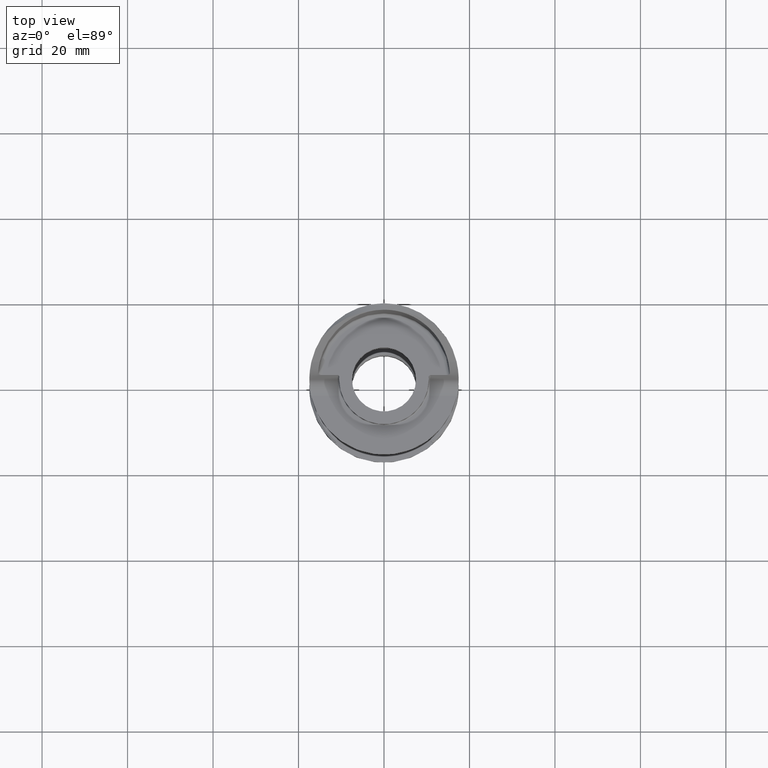
[diagram: clean part render]
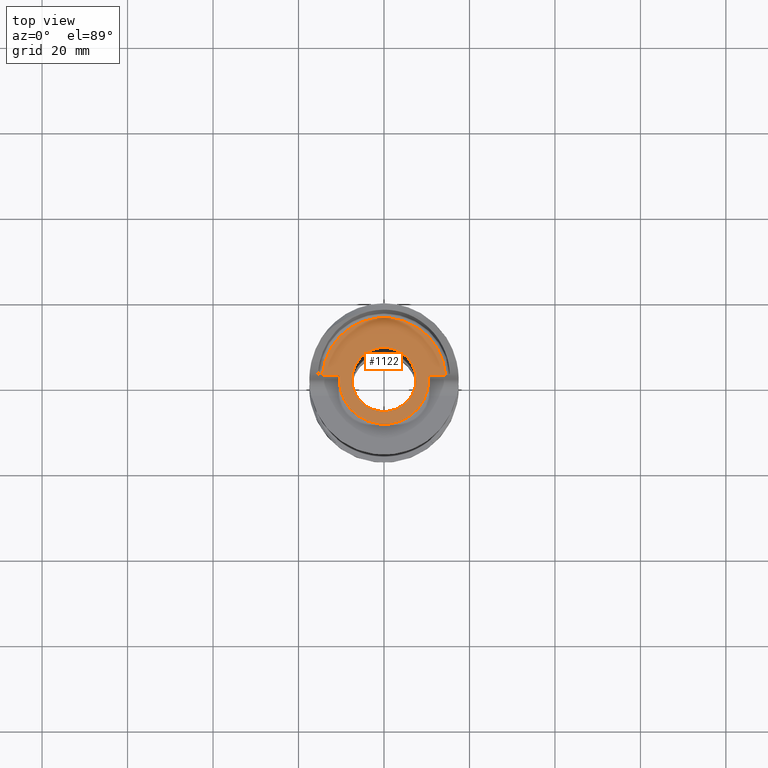
[diagram: same view with one face highlighted and labeled with its STEP entity id]
A machine part, top view. The second image highlights one B-rep face of the part: STEP entity #1122.
In plain terms, the highlighted planar face has unit normal (0, 0, 1).
Its self-contained STEP definition (entity closure, byte-faithful):
#24 = DIRECTION ( 'NONE',  ( 1.000000000000000000, -0.0000000000000000000, -0.0000000000000000000 ) ) ;
#36 = CIRCLE ( 'NONE', #2549, 0.4130000000000000300 ) ;
#57 = VERTEX_POINT ( 'NONE', #1494 ) ;
#131 = CARTESIAN_POINT ( 'NONE',  ( -0.4130000000000000300, 5.057791280478569300E-017, 0.5899999999999999700 ) ) ;
#155 = CARTESIAN_POINT ( 'NONE',  ( 0.4272119029961830000, 0.03997152839615136800, 0.5899999999999999700 ) ) ;
#176 = ORIENTED_EDGE ( 'NONE', *, *, #234, .F. ) ;
#212 = CARTESIAN_POINT ( 'NONE',  ( 0.0000000000000000000, 0.0000000000000000000, 0.5899999999999999700 ) ) ;
#219 = DIRECTION ( 'NONE',  ( 1.000000000000000000, 0.0000000000000000000, 0.0000000000000000000 ) ) ;
#234 = EDGE_CURVE ( 'NONE', #1791, #772, #1723, .T. ) ;
#243 = LINE ( 'NONE', #2629, #1846 ) ;
#256 = EDGE_LOOP ( 'NONE', ( #2511, #1966, #1314, #1048, #771, #1284, #1279, #1037 ) ) ;
#323 = AXIS2_PLACEMENT_3D ( 'NONE', #363, #1905, #593 ) ;
#346 = VERTEX_POINT ( 'NONE', #746 ) ;
#363 = CARTESIAN_POINT ( 'NONE',  ( 0.0000000000000000000, 0.0000000000000000000, 0.5899999999999999700 ) ) ;
#378 = CARTESIAN_POINT ( 'NONE',  ( 0.0000000000000000000, 0.0000000000000000000, 0.5899999999999999700 ) ) ;
#414 = AXIS2_PLACEMENT_3D ( 'NONE', #212, #875, #2397 ) ;
#432 = CARTESIAN_POINT ( 'NONE',  ( 0.0000000000000000000, 0.0000000000000000000, 0.5899999999999999700 ) ) ;
#504 = CARTESIAN_POINT ( 'NONE',  ( -0.4272119029961830600, 0.03997152839615136800, 0.5899999999999999700 ) ) ;
#518 = VERTEX_POINT ( 'NONE', #131 ) ;
#545 = DIRECTION ( 'NONE',  ( 1.000000000000000000, 0.0000000000000000000, 0.0000000000000000000 ) ) ;
#546 = EDGE_CURVE ( 'NONE', #2470, #1885, #1770, .T. ) ;
#582 = CARTESIAN_POINT ( 'NONE',  ( 0.4134759315422202300, 0.03156485039215653500, 0.5900000000000000800 ) ) ;
#593 = DIRECTION ( 'NONE',  ( 1.000000000000000000, 0.0000000000000000000, 0.0000000000000000000 ) ) ;
#605 = EDGE_CURVE ( 'NONE', #932, #2470, #2771, .T. ) ;
#606 = DIRECTION ( 'NONE',  ( 1.000000000000000000, 0.0000000000000000000, 0.0000000000000000000 ) ) ;
#746 = CARTESIAN_POINT ( 'NONE',  ( 0.5671268584413404800, 0.03997152839615136800, 0.5899999999999999700 ) ) ;
#771 = ORIENTED_EDGE ( 'NONE', *, *, #820, .T. ) ;
#772 = VERTEX_POINT ( 'NONE', #2402 ) ;
#780 = CARTESIAN_POINT ( 'NONE',  ( 0.0000000000000000000, 0.0000000000000000000, 0.5899999999999999700 ) ) ;
#820 = EDGE_CURVE ( 'NONE', #1885, #346, #243, .T. ) ;
#845 = DIRECTION ( 'NONE',  ( 0.0000000000000000000, 0.0000000000000000000, 1.000000000000000000 ) ) ;
#860 = B_SPLINE_CURVE_WITH_KNOTS ( 'NONE', 3,
 ( #1516, #2789, #2102, #2122, #1924, #1936 ),
 .UNSPECIFIED., .F., .F.,
 ( 4, 2, 4 ),
 ( 1.748223473168675600E-018, 0.0003180297372260358600, 0.0006360594744520699900 ),
 .UNSPECIFIED. ) ;
#875 = DIRECTION ( 'NONE',  ( 0.0000000000000000000, 0.0000000000000000000, 1.000000000000000000 ) ) ;
#932 = VERTEX_POINT ( 'NONE', #2766 ) ;
#979 = EDGE_CURVE ( 'NONE', #518, #932, #2149, .T. ) ;
#1037 = ORIENTED_EDGE ( 'NONE', *, *, #1915, .T. ) ;
#1048 = ORIENTED_EDGE ( 'NONE', *, *, #546, .T. ) ;
#1068 = DIRECTION ( 'NONE',  ( -0.0000000000000000000, -0.0000000000000000000, 1.000000000000000000 ) ) ;
#1074 = AXIS2_PLACEMENT_3D ( 'NONE', #432, #1755, #219 ) ;
#1081 = EDGE_CURVE ( 'NONE', #772, #1791, #2081, .T. ) ;
#1094 = LINE ( 'NONE', #1588, #2768 ) ;
#1122 = ADVANCED_FACE ( 'NONE', ( #1164, #2387 ), #1532, .T. ) ;
#1146 = EDGE_LOOP ( 'NONE', ( #1416, #176 ) ) ;
#1164 = FACE_BOUND ( 'NONE', #1146, .T. ) ;
#1212 = AXIS2_PLACEMENT_3D ( 'NONE', #2372, #1068, #2590 ) ;
#1237 = EDGE_CURVE ( 'NONE', #57, #2608, #1094, .T. ) ;
#1256 = CARTESIAN_POINT ( 'NONE',  ( 0.4123537041102831000, 0.02309594567297702100, 0.5899999999999999700 ) ) ;
#1279 = ORIENTED_EDGE ( 'NONE', *, *, #1237, .T. ) ;
#1284 = ORIENTED_EDGE ( 'NONE', *, *, #1708, .T. ) ;
#1314 = ORIENTED_EDGE ( 'NONE', *, *, #605, .T. ) ;
#1327 = AXIS2_PLACEMENT_3D ( 'NONE', #378, #1916, #606 ) ;
#1367 = DIRECTION ( 'NONE',  ( 0.0000000000000000000, 0.0000000000000000000, 1.000000000000000000 ) ) ;
#1416 = ORIENTED_EDGE ( 'NONE', *, *, #1081, .F. ) ;
#1465 = CARTESIAN_POINT ( 'NONE',  ( 0.4229728860554361500, 0.03997152839615143700, 0.5899999999999999700 ) ) ;
#1477 = DIRECTION ( 'NONE',  ( 1.000000000000000000, 0.0000000000000000000, 0.0000000000000000000 ) ) ;
#1494 = CARTESIAN_POINT ( 'NONE',  ( -0.5671268584413404800, 0.03997152839615136800, 0.5899999999999999700 ) ) ;
#1516 = CARTESIAN_POINT ( 'NONE',  ( -0.4272119029961830600, 0.03997152839615136800, 0.5899999999999999700 ) ) ;
#1532 = PLANE ( 'NONE',  #414 ) ;
#1588 = CARTESIAN_POINT ( 'NONE',  ( 0.6875000000000000000, 0.03997152839615136800, 0.5899999999999999700 ) ) ;
#1694 = CARTESIAN_POINT ( 'NONE',  ( -0.2952755905511810800, 3.616083068348483800E-017, 0.5899999999999999700 ) ) ;
#1705 = CARTESIAN_POINT ( 'NONE',  ( 0.4272119029961830000, 0.03997152839615136800, 0.5899999999999999700 ) ) ;
#1708 = EDGE_CURVE ( 'NONE', #346, #57, #2663, .T. ) ;
#1723 = CIRCLE ( 'NONE', #1074, 0.2952755905511810200 ) ;
#1755 = DIRECTION ( 'NONE',  ( -0.0000000000000000000, -0.0000000000000000000, 1.000000000000000000 ) ) ;
#1770 = B_SPLINE_CURVE_WITH_KNOTS ( 'NONE', 3,
 ( #1256, #2113, #582, #2777, #1465, #155 ),
 .UNSPECIFIED., .F., .F.,
 ( 4, 2, 4 ),
 ( 0.0000000000000000000, 0.0003178410015403890400, 0.0006356820030807780800 ),
 .UNSPECIFIED. ) ;
#1791 = VERTEX_POINT ( 'NONE', #1694 ) ;
#1846 = VECTOR ( 'NONE', #24, 39.37007874015748100 ) ;
#1885 = VERTEX_POINT ( 'NONE', #1705 ) ;
#1905 = DIRECTION ( 'NONE',  ( 0.0000000000000000000, 0.0000000000000000000, 1.000000000000000000 ) ) ;
#1914 = CARTESIAN_POINT ( 'NONE',  ( -0.4123537041102831000, 0.02309594567297702800, 0.5899999999999999700 ) ) ;
#1915 = EDGE_CURVE ( 'NONE', #2608, #1923, #860, .T. ) ;
#1916 = DIRECTION ( 'NONE',  ( 0.0000000000000000000, 0.0000000000000000000, 1.000000000000000000 ) ) ;
#1923 = VERTEX_POINT ( 'NONE', #1914 ) ;
#1924 = CARTESIAN_POINT ( 'NONE',  ( -0.4121172797892679300, 0.02731705209107853800, 0.5899999999999999700 ) ) ;
#1936 = CARTESIAN_POINT ( 'NONE',  ( -0.4123537041102831000, 0.02309594567297702800, 0.5899999999999999700 ) ) ;
#1957 = CARTESIAN_POINT ( 'NONE',  ( 0.4123537041102831000, 0.02309594567297702100, 0.5899999999999999700 ) ) ;
#1966 = ORIENTED_EDGE ( 'NONE', *, *, #979, .T. ) ;
#2037 = CARTESIAN_POINT ( 'NONE',  ( 0.0000000000000000000, 0.0000000000000000000, 0.5899999999999999700 ) ) ;
#2081 = CIRCLE ( 'NONE', #1212, 0.2952755905511810200 ) ;
#2102 = CARTESIAN_POINT ( 'NONE',  ( -0.4188968579470179800, 0.03795082338056081400, 0.5900000000000000800 ) ) ;
#2113 = CARTESIAN_POINT ( 'NONE',  ( 0.4121171492697121600, 0.02731938237982481700, 0.5899999999999999700 ) ) ;
#2122 = CARTESIAN_POINT ( 'NONE',  ( -0.4134838189991686400, 0.03157684437210241800, 0.5899999999999997500 ) ) ;
#2149 = CIRCLE ( 'NONE', #323, 0.4130000000000000300 ) ;
#2267 = AXIS2_PLACEMENT_3D ( 'NONE', #2037, #1367, #1477 ) ;
#2275 = DIRECTION ( 'NONE',  ( 1.000000000000000000, -0.0000000000000000000, -0.0000000000000000000 ) ) ;
#2301 = EDGE_CURVE ( 'NONE', #1923, #518, #36, .T. ) ;
#2372 = CARTESIAN_POINT ( 'NONE',  ( 0.0000000000000000000, 0.0000000000000000000, 0.5899999999999999700 ) ) ;
#2387 = FACE_OUTER_BOUND ( 'NONE', #256, .T. ) ;
#2397 = DIRECTION ( 'NONE',  ( 1.000000000000000000, 0.0000000000000000000, -0.0000000000000000000 ) ) ;
#2402 = CARTESIAN_POINT ( 'NONE',  ( 0.2952755905511810200, 0.0000000000000000000, 0.5899999999999999700 ) ) ;
#2470 = VERTEX_POINT ( 'NONE', #1957 ) ;
#2511 = ORIENTED_EDGE ( 'NONE', *, *, #2301, .T. ) ;
#2549 = AXIS2_PLACEMENT_3D ( 'NONE', #780, #845, #545 ) ;
#2590 = DIRECTION ( 'NONE',  ( 1.000000000000000000, 0.0000000000000000000, 0.0000000000000000000 ) ) ;
#2608 = VERTEX_POINT ( 'NONE', #504 ) ;
#2629 = CARTESIAN_POINT ( 'NONE',  ( 0.6875000000000000000, 0.03997152839615136800, 0.5899999999999999700 ) ) ;
#2663 = CIRCLE ( 'NONE', #2267, 0.5685337251631328300 ) ;
#2766 = CARTESIAN_POINT ( 'NONE',  ( 0.4130000000000000300, 0.0000000000000000000, 0.5899999999999999700 ) ) ;
#2768 = VECTOR ( 'NONE', #2275, 39.37007874015748100 ) ;
#2771 = CIRCLE ( 'NONE', #1327, 0.4130000000000000300 ) ;
#2777 = CARTESIAN_POINT ( 'NONE',  ( 0.4188963336510193000, 0.03795290813053905200, 0.5899999999999997500 ) ) ;
#2789 = CARTESIAN_POINT ( 'NONE',  ( -0.4229767335160231600, 0.03997152839615138200, 0.5899999999999999700 ) ) ;